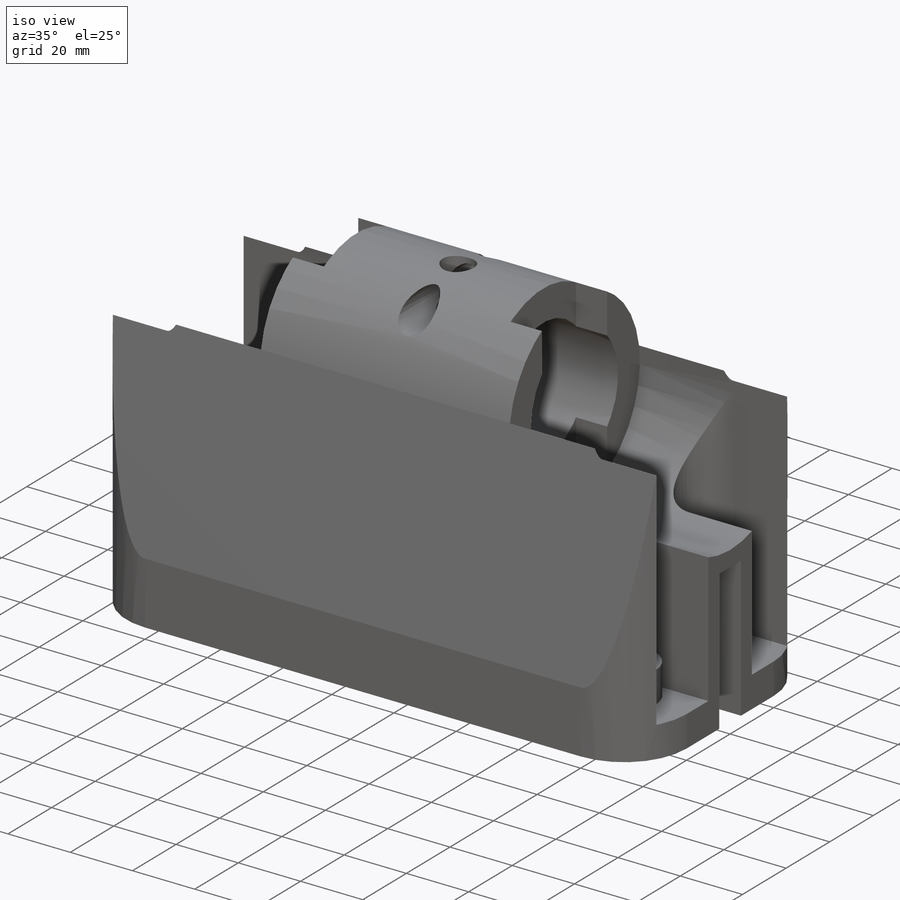
[diagram: iso view]
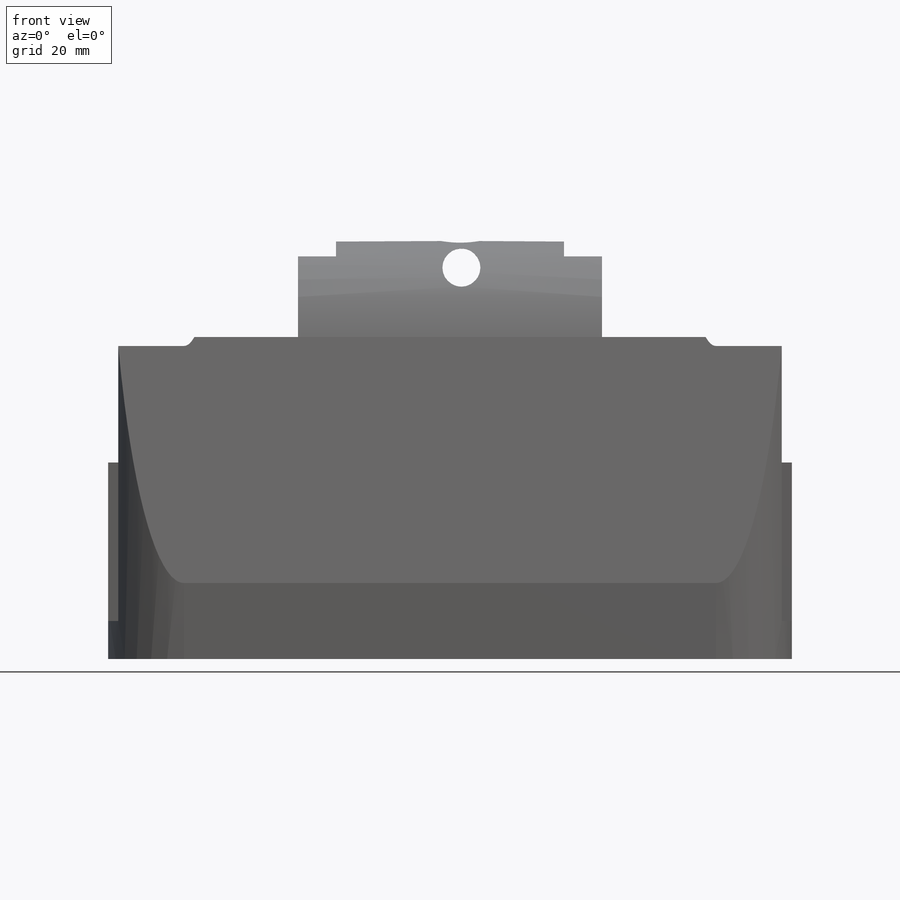
[diagram: front view]
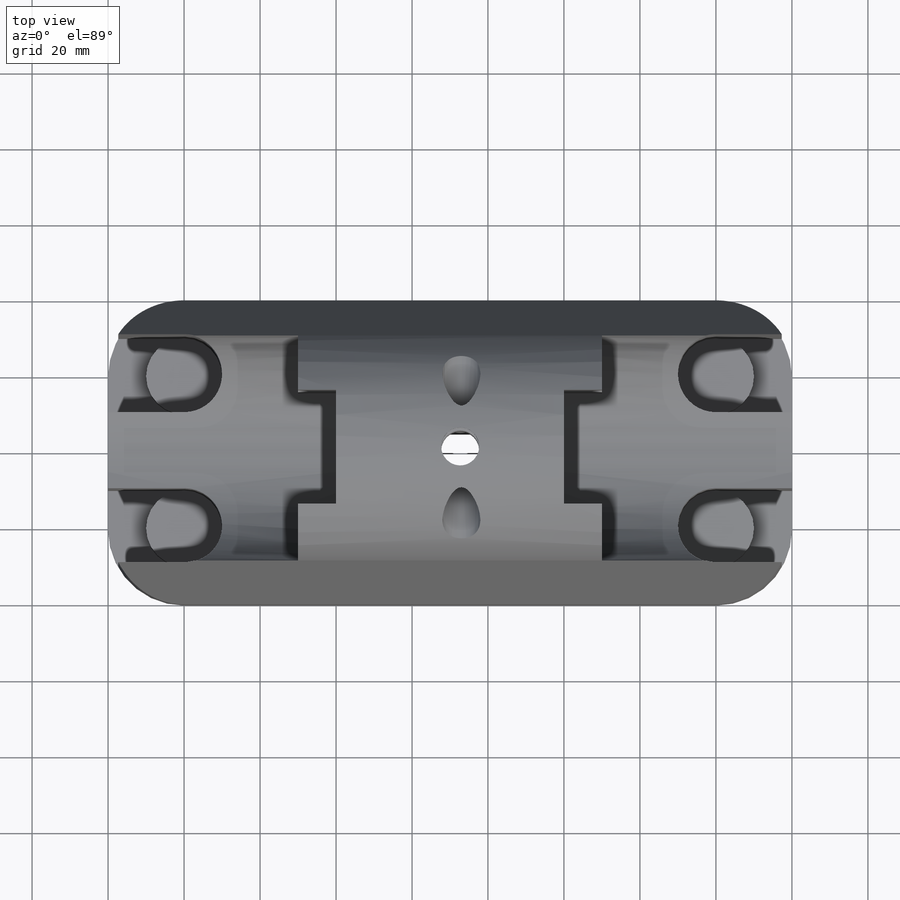
[diagram: top view]
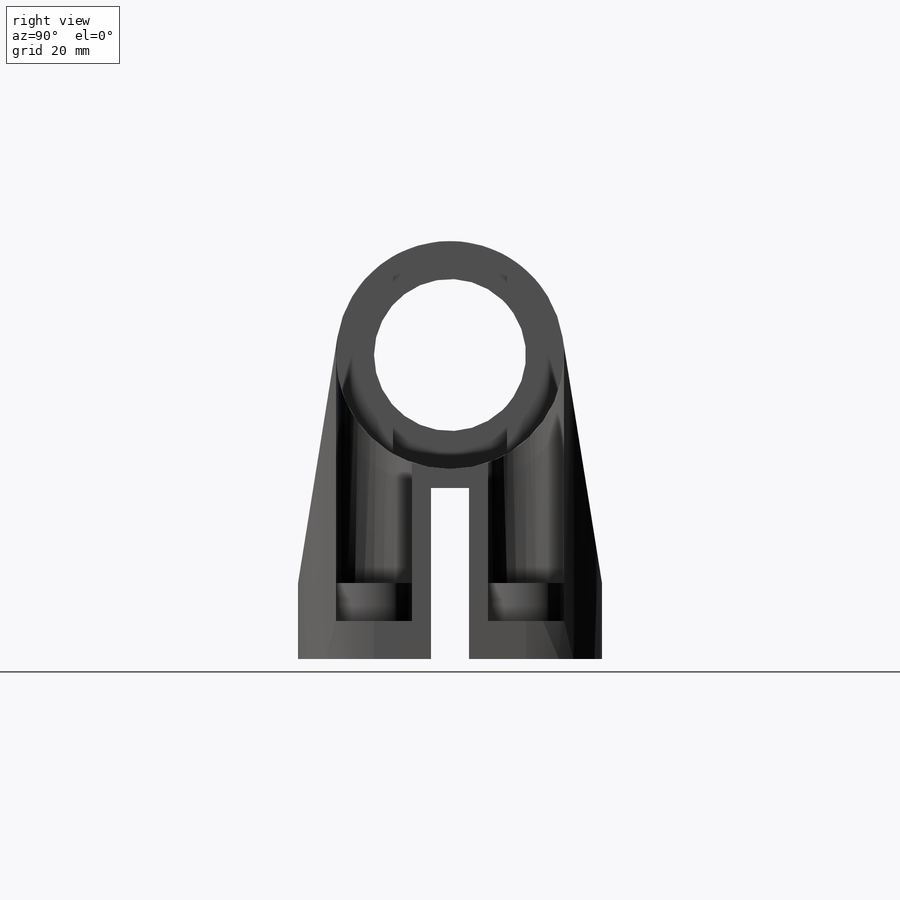
[diagram: right view]
SOLIDWORKS PART (.sldprt)
format: sldprt  version: not decoded by parser v0  size: 544,256 bytes
history: native  units: mm
features: sketch x16, cut_extrude x15, plane x3, material x1, extrude x1 (+13 scaffold rows collapsed)
feature tree (49):
  scaffold x13  (default folders/planes/origin — collapsed)
  material  "Material <not specified>"
  sketch  "Sketch1"  dims[D1=20.0mm D2=140.0mm D3=40.0mm]
  extrude  "Boss-Extrude3"  Depth=110mm
  sketch  "Sketch4"  dims[D1=~14.142136mm D2=10.0mm]
  cut_extrude  "Cut-Extrude3"  Depth=90mm
  sketch  "Sketch5"  dims[D1=20.0mm D2=20.0mm]
  cut_extrude  "Cut-Extrude4"  Depth=10mm
  sketch  "Sketch6"  dims[D1=20.0mm D2=20.0mm D3=20.0mm D4=20.0mm D5=~17.320508mm]
  cut_extrude  "Cut-Extrude5"  Depth=90mm
  sketch  "Sketch7"  dims[D1=20.0mm D2=20.0mm D3=20.0mm D4=20.0mm]
  cut_extrude  "Cut-Extrude6"  Depth=10mm
  sketch  "Sketch8"  dims[D1=20.0mm D2=20.0mm D3=20.0mm D4=~17.320508mm D5=~17.320508mm D6=10.0mm D7=~17.320508mm D8=10.0mm D9=20.0mm]
  cut_extrude  "Cut-Extrude7"  Depth=10mm
  sketch  "Sketch9"  dims[D1=20.0mm D2=~17.320508mm]
  cut_extrude  "Cut-Extrude8"  Depth=10mm
  plane  "Plane1"  Offset=50mm
  sketch  "Sketch10"  dims[D1=60.0mm D2=30.0mm D3=40.0mm D4=20.0mm D5=80.0mm D6=20.0mm D7=80.0mm]
  cut_extrude  "Cut-Extrude11"  Depth=165mm
  sketch  "Sketch11"  dims[D1=60.0mm]
  cut_extrude  "Cut-Extrude12"  Depth=165mm
  plane  "Plane2"  Offset=130mm
  sketch  "Sketch12"  dims[D1=60.0mm]
  cut_extrude  "Cut-Extrude13"  Depth=165mm
  sketch  "Sketch13"  dims[D1=15.0mm D2=15.0mm]
  cut_extrude  "Cut-Extrude14"  Depth=10mm
  sketch  "Sketch14"  dims[D1=15.0mm D2=15.0mm]
  cut_extrude  "Cut-Extrude15"  Depth=10mm
  sketch  "Sketch15"  dims[D1=40.0mm]
  cut_extrude  "Cut-Extrude16"  Depth=91mm
  sketch  "Sketch16"  dims[D1=10.0mm D2=90.0mm D3=40.0mm]
  cut_extrude  "Cut-Extrude17"  Depth=157mm
  plane  "Plane4"  Offset=93mm
  sketch  "Sketch17"  dims[D1=10.0mm D2=0.0mm D3=35.0mm D4=45.0mm D5=45.0mm]
  cut_extrude  "Cut-Extrude20"  Depth=157mm
  sketch  "Sketch19"  dims[D1=10.0mm D2=87.0mm D3=7.0mm]
  cut_extrude  "Cut-Extrude23"  Depth=157mm
decode coverage: 32 of 32 modeling features carry decoded parameters
note: ~ marks probable driven/reference dimensions
note: suppression state not decoded; provenance and decode notes live in map.json
